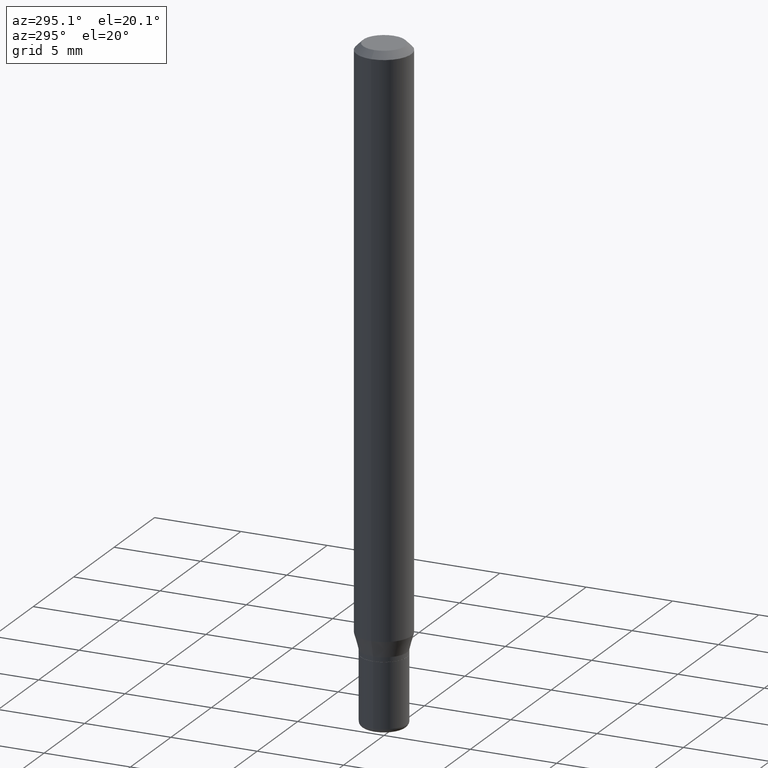
[diagram: clean part render]
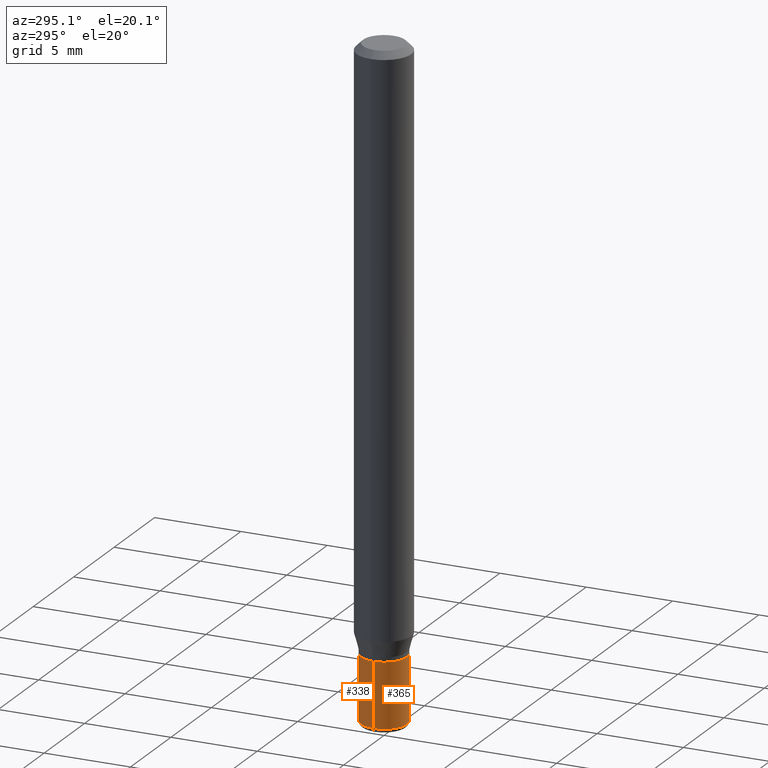
[diagram: same view with one multi-face feature highlighted, each face labeled with its STEP entity id]
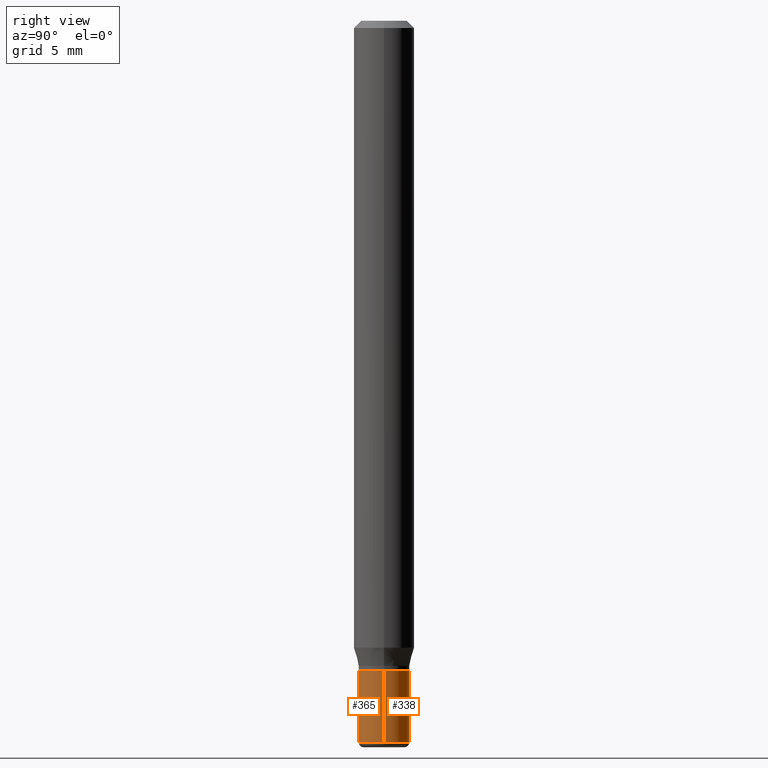
[diagram: same view with one multi-face feature highlighted, each face labeled with its STEP entity id]
A machine part, auxiliary view. The highlighted faces form ONE feature: a constant-radius fillet chain: 2 tangent blend faces with common blend radius 1.3335 mm. The faces share edges in the B-rep.
A second angle (right view) of the same feature is appended — it is thin or edge-on in the first view.
Their STEP definitions:
[1] entity #365 (Cylinder):
#6 = DIRECTION ( 'NONE',  ( 1.000000000000000000, -6.982962677686257244E-15, 0.000000000000000000 ) ) ;
#28 = AXIS2_PLACEMENT_3D ( 'NONE', #341, #223, #6 ) ;
#29 = EDGE_CURVE ( 'NONE', #329, #210, #113, .T. ) ;
#52 = EDGE_CURVE ( 'NONE', #244, #250, #297, .T. ) ;
#56 = ORIENTED_EDGE ( 'NONE', *, *, #52, .F. ) ;
#68 = CARTESIAN_POINT ( 'NONE',  ( 0.05249999999999999806, -5.053919237975452413E-15, -1.342500000000000249 ) ) ;
#87 = CARTESIAN_POINT ( 'NONE',  ( -0.05249999999999997030, 3.730349362740523866E-16, -2.582440922383824260E-30 ) ) ;
#89 = EDGE_CURVE ( 'NONE', #329, #244, #288, .T. ) ;
#97 = CARTESIAN_POINT ( 'NONE',  ( 3.283041872303546419E-29, -4.687313697396923253E-15, -1.342500000000000249 ) ) ;
#112 = CARTESIAN_POINT ( 'NONE',  ( -0.05249999999999999806, -4.571775509862553934E-15, -1.342500000000000249 ) ) ;
#113 = CIRCLE ( 'NONE', #28, 0.05249999999999994255 ) ;
#121 = VECTOR ( 'NONE', #470, 39.37007874015748143 ) ;
#133 = DIRECTION ( 'NONE',  ( -2.445468806185136597E-29, 3.491481338843145583E-15, 1.000000000000000000 ) ) ;
#136 = CYLINDRICAL_SURFACE ( 'NONE', #353, 0.05249999999999997030 ) ;
#185 = EDGE_CURVE ( 'NONE', #210, #250, #509, .T. ) ;
#202 = CARTESIAN_POINT ( 'NONE',  ( 0.000000000000000000, 0.000000000000000000, 0.000000000000000000 ) ) ;
#206 = DIRECTION ( 'NONE',  ( -2.445468806185136597E-29, 3.491481338843145583E-15, 1.000000000000000000 ) ) ;
#210 = VERTEX_POINT ( 'NONE', #435 ) ;
#223 = DIRECTION ( 'NONE',  ( -2.445468806185136597E-29, 3.491481338843145583E-15, 1.000000000000000000 ) ) ;
#234 = FACE_OUTER_BOUND ( 'NONE', #255, .T. ) ;
#244 = VERTEX_POINT ( 'NONE', #112 ) ;
#250 = VERTEX_POINT ( 'NONE', #68 ) ;
#254 = DIRECTION ( 'NONE',  ( -2.445468806185136877E-29, 3.491481338843145188E-15, 1.000000000000000000 ) ) ;
#255 = EDGE_LOOP ( 'NONE', ( #378, #383, #291, #56 ) ) ;
#288 = LINE ( 'NONE', #87, #472 ) ;
#291 = ORIENTED_EDGE ( 'NONE', *, *, #185, .T. ) ;
#297 = CIRCLE ( 'NONE', #343, 0.05249999999999999806 ) ;
#304 = DIRECTION ( 'NONE',  ( 1.000000000000000000, -6.982962677686268288E-15, 0.000000000000000000 ) ) ;
#318 = CARTESIAN_POINT ( 'NONE',  ( 0.05249999999999997030, -3.666055405785287656E-16, 2.559992807292864610E-30 ) ) ;
#329 = VERTEX_POINT ( 'NONE', #515 ) ;
#341 = CARTESIAN_POINT ( 'NONE',  ( 3.643748521215853910E-29, -5.202307194876288105E-15, -1.490000000000000213 ) ) ;
#343 = AXIS2_PLACEMENT_3D ( 'NONE', #97, #133, #304 ) ;
#353 = AXIS2_PLACEMENT_3D ( 'NONE', #202, #206, #440 ) ;
#365 = ADVANCED_FACE ( 'NONE', ( #234 ), #136, .T. ) ;
#378 = ORIENTED_EDGE ( 'NONE', *, *, #89, .F. ) ;
#383 = ORIENTED_EDGE ( 'NONE', *, *, #29, .T. ) ;
#435 = CARTESIAN_POINT ( 'NONE',  ( 0.05249999999999994255, -5.568912735454815688E-15, -1.490000000000000213 ) ) ;
#440 = DIRECTION ( 'NONE',  ( 1.000000000000000000, -6.982962677686265922E-15, 4.876176775795935232E-29 ) ) ;
#470 = DIRECTION ( 'NONE',  ( -2.445468806185136877E-29, 3.491481338843145188E-15, 1.000000000000000000 ) ) ;
#472 = VECTOR ( 'NONE', #254, 39.37007874015748143 ) ;
#509 = LINE ( 'NONE', #318, #121 ) ;
#515 = CARTESIAN_POINT ( 'NONE',  ( -0.05249999999999994255, -4.571775509862553934E-15, -1.490000000000000213 ) ) ;
[2] entity #338 (Cylinder):
#11 = DIRECTION ( 'NONE',  ( 1.000000000000000000, -6.982962677686265922E-15, 4.876176775795935232E-29 ) ) ;
#15 = ORIENTED_EDGE ( 'NONE', *, *, #89, .T. ) ;
#19 = AXIS2_PLACEMENT_3D ( 'NONE', #323, #359, #239 ) ;
#38 = CYLINDRICAL_SURFACE ( 'NONE', #309, 0.05249999999999997030 ) ;
#43 = EDGE_LOOP ( 'NONE', ( #248, #15, #103, #447 ) ) ;
#68 = CARTESIAN_POINT ( 'NONE',  ( 0.05249999999999999806, -5.053919237975452413E-15, -1.342500000000000249 ) ) ;
#87 = CARTESIAN_POINT ( 'NONE',  ( -0.05249999999999997030, 3.730349362740523866E-16, -2.582440922383824260E-30 ) ) ;
#89 = EDGE_CURVE ( 'NONE', #329, #244, #288, .T. ) ;
#103 = ORIENTED_EDGE ( 'NONE', *, *, #389, .F. ) ;
#112 = CARTESIAN_POINT ( 'NONE',  ( -0.05249999999999999806, -4.571775509862553934E-15, -1.342500000000000249 ) ) ;
#120 = DIRECTION ( 'NONE',  ( -2.445468806185136597E-29, 3.491481338843145583E-15, 1.000000000000000000 ) ) ;
#121 = VECTOR ( 'NONE', #470, 39.37007874015748143 ) ;
#185 = EDGE_CURVE ( 'NONE', #210, #250, #509, .T. ) ;
#208 = AXIS2_PLACEMENT_3D ( 'NONE', #333, #120, #489 ) ;
#210 = VERTEX_POINT ( 'NONE', #435 ) ;
#239 = DIRECTION ( 'NONE',  ( 1.000000000000000000, -6.982962677686268288E-15, 0.000000000000000000 ) ) ;
#244 = VERTEX_POINT ( 'NONE', #112 ) ;
#247 = FACE_OUTER_BOUND ( 'NONE', #43, .T. ) ;
#248 = ORIENTED_EDGE ( 'NONE', *, *, #362, .T. ) ;
#250 = VERTEX_POINT ( 'NONE', #68 ) ;
#254 = DIRECTION ( 'NONE',  ( -2.445468806185136877E-29, 3.491481338843145188E-15, 1.000000000000000000 ) ) ;
#264 = CIRCLE ( 'NONE', #208, 0.05249999999999994255 ) ;
#288 = LINE ( 'NONE', #87, #472 ) ;
#309 = AXIS2_PLACEMENT_3D ( 'NONE', #416, #477, #11 ) ;
#318 = CARTESIAN_POINT ( 'NONE',  ( 0.05249999999999997030, -3.666055405785287656E-16, 2.559992807292864610E-30 ) ) ;
#323 = CARTESIAN_POINT ( 'NONE',  ( 3.283041872303546419E-29, -4.687313697396923253E-15, -1.342500000000000249 ) ) ;
#329 = VERTEX_POINT ( 'NONE', #515 ) ;
#333 = CARTESIAN_POINT ( 'NONE',  ( 3.643748521215853910E-29, -5.202307194876288105E-15, -1.490000000000000213 ) ) ;
#338 = ADVANCED_FACE ( 'NONE', ( #247 ), #38, .T. ) ;
#359 = DIRECTION ( 'NONE',  ( -2.445468806185136597E-29, 3.491481338843145583E-15, 1.000000000000000000 ) ) ;
#362 = EDGE_CURVE ( 'NONE', #210, #329, #264, .T. ) ;
#389 = EDGE_CURVE ( 'NONE', #250, #244, #479, .T. ) ;
#416 = CARTESIAN_POINT ( 'NONE',  ( 0.000000000000000000, 0.000000000000000000, 0.000000000000000000 ) ) ;
#435 = CARTESIAN_POINT ( 'NONE',  ( 0.05249999999999994255, -5.568912735454815688E-15, -1.490000000000000213 ) ) ;
#447 = ORIENTED_EDGE ( 'NONE', *, *, #185, .F. ) ;
#470 = DIRECTION ( 'NONE',  ( -2.445468806185136877E-29, 3.491481338843145188E-15, 1.000000000000000000 ) ) ;
#472 = VECTOR ( 'NONE', #254, 39.37007874015748143 ) ;
#477 = DIRECTION ( 'NONE',  ( -2.445468806185136597E-29, 3.491481338843145583E-15, 1.000000000000000000 ) ) ;
#479 = CIRCLE ( 'NONE', #19, 0.05249999999999999806 ) ;
#489 = DIRECTION ( 'NONE',  ( 1.000000000000000000, -6.982962677686257244E-15, 0.000000000000000000 ) ) ;
#509 = LINE ( 'NONE', #318, #121 ) ;
#515 = CARTESIAN_POINT ( 'NONE',  ( -0.05249999999999994255, -4.571775509862553934E-15, -1.490000000000000213 ) ) ;